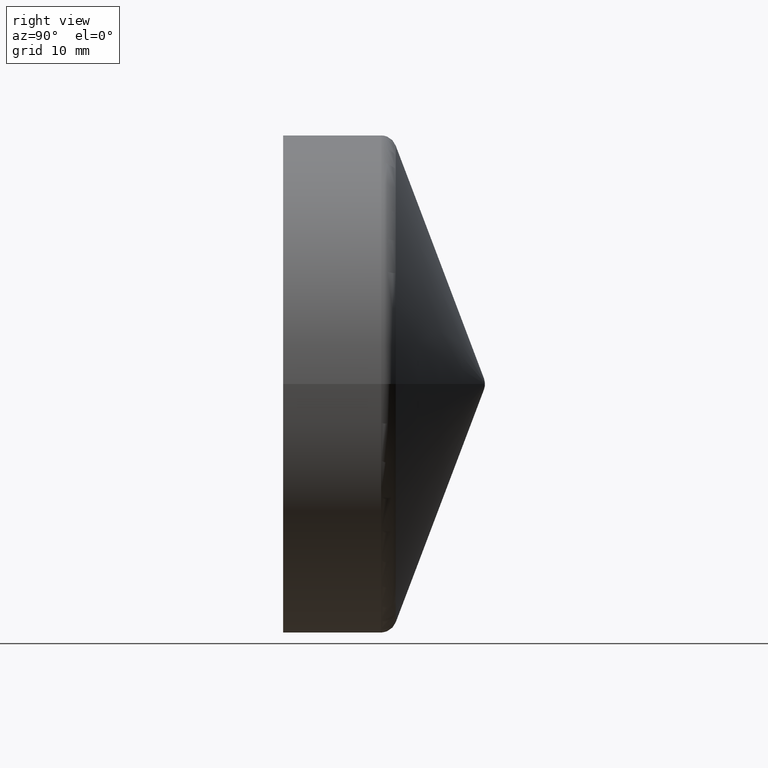
[diagram: clean part render]
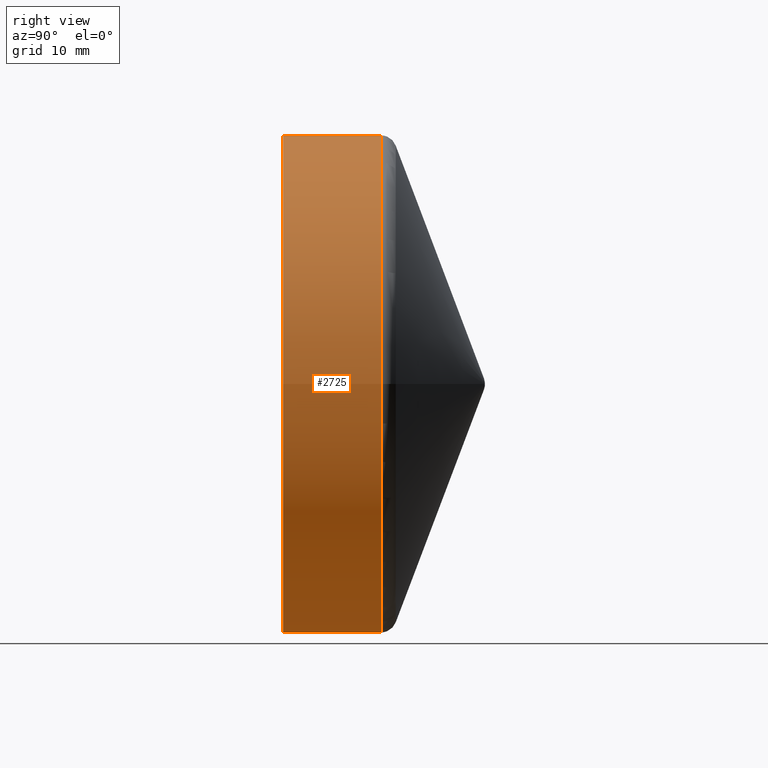
[diagram: same view with one face highlighted and labeled with its STEP entity id]
A machine part, right view. The second image highlights one B-rep face of the part: STEP entity #2725.
In plain terms, the highlighted cylindrical surface (bore or boss wall) has radius 32 mm, axis along (0, -1, -0).
Its self-contained STEP definition (entity closure, byte-faithful):
#19 = DIRECTION ( 'NONE',  ( 1.000000000000000000, 2.041077998578925000E-017, 0.0000000000000000000 ) ) ;
#42 = CIRCLE ( 'NONE', #4882, 32.00000000000000000 ) ;
#171 = DIRECTION ( 'NONE',  ( 1.000000000000000000, 0.0000000000000000000, 0.0000000000000000000 ) ) ;
#574 = CYLINDRICAL_SURFACE ( 'NONE', #8409, 32.00000000000000000 ) ;
#1347 = DIRECTION ( 'NONE',  ( 2.041077998578925000E-017, -1.000000000000000000, -0.0000000000000000000 ) ) ;
#2725 = ADVANCED_FACE ( 'NONE', ( #5910, #2875 ), #574, .T. ) ;
#2730 = VERTEX_POINT ( 'NONE', #7244 ) ;
#2875 = FACE_OUTER_BOUND ( 'NONE', #8394, .T. ) ;
#2938 = AXIS2_PLACEMENT_3D ( 'NONE', #3412, #4628, #19 ) ;
#3028 = EDGE_LOOP ( 'NONE', ( #8614 ) ) ;
#3412 = CARTESIAN_POINT ( 'NONE',  ( 5.306802796305205500E-016, 0.0000000000000000000, 0.0000000000000000000 ) ) ;
#3870 = ORIENTED_EDGE ( 'NONE', *, *, #4103, .F. ) ;
#3984 = VERTEX_POINT ( 'NONE', #7194 ) ;
#4103 = EDGE_CURVE ( 'NONE', #3984, #3984, #7037, .T. ) ;
#4196 = DIRECTION ( 'NONE',  ( 2.041077998578925000E-017, -1.000000000000000000, -0.0000000000000000000 ) ) ;
#4214 = EDGE_CURVE ( 'NONE', #2730, #2730, #42, .T. ) ;
#4628 = DIRECTION ( 'NONE',  ( 2.041077998578925000E-017, -1.000000000000000000, -0.0000000000000000000 ) ) ;
#4645 = DIRECTION ( 'NONE',  ( 1.000000000000000000, 0.0000000000000000000, 0.0000000000000000000 ) ) ;
#4882 = AXIS2_PLACEMENT_3D ( 'NONE', #5476, #4196, #171 ) ;
#5476 = CARTESIAN_POINT ( 'NONE',  ( 2.728958768864363200E-016, 12.62981634820243400, 0.0000000000000000000 ) ) ;
#5910 = FACE_OUTER_BOUND ( 'NONE', #3028, .T. ) ;
#7037 = CIRCLE ( 'NONE', #2938, 32.00000000000000000 ) ;
#7194 = CARTESIAN_POINT ( 'NONE',  ( 32.00000000000000000, 6.531449595452560000E-016, 0.0000000000000000000 ) ) ;
#7244 = CARTESIAN_POINT ( 'NONE',  ( 32.00000000000000000, 12.62981634820243400, 0.0000000000000000000 ) ) ;
#7308 = CARTESIAN_POINT ( 'NONE',  ( 3.061616997868383000E-017, 24.50000000000000000, 0.0000000000000000000 ) ) ;
#8394 = EDGE_LOOP ( 'NONE', ( #3870 ) ) ;
#8409 = AXIS2_PLACEMENT_3D ( 'NONE', #7308, #1347, #4645 ) ;
#8614 = ORIENTED_EDGE ( 'NONE', *, *, #4214, .T. ) ;